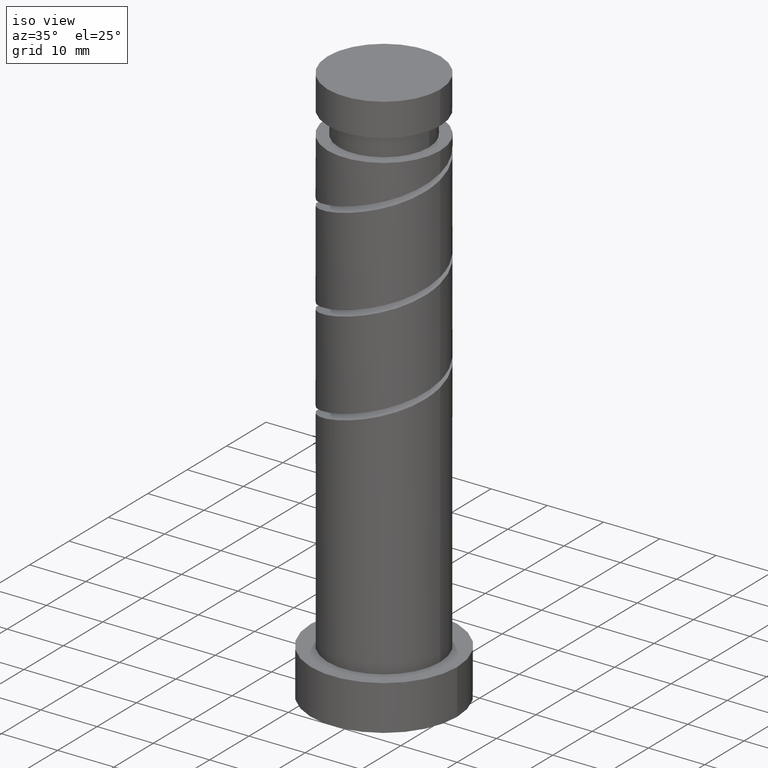
[diagram: clean part render]
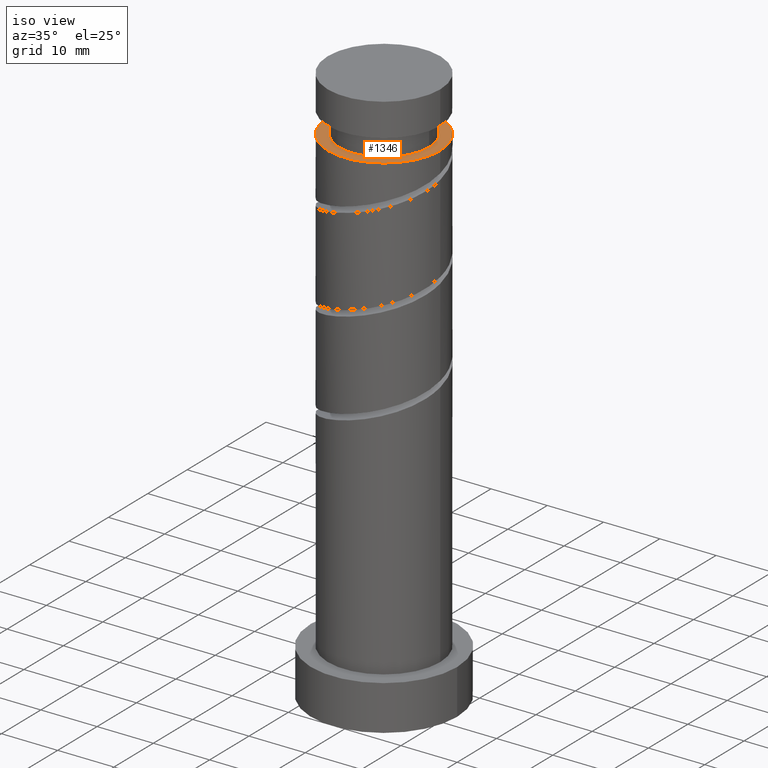
[diagram: same view with one face highlighted and labeled with its STEP entity id]
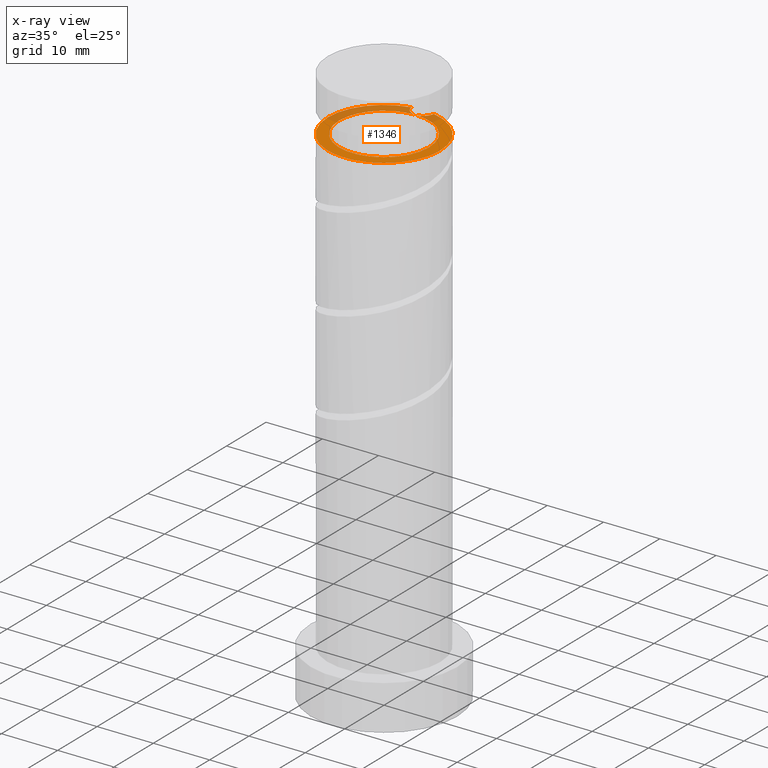
[diagram: x-ray of the same camera — body ghosted, the highlighted face saturated]
A machine part, iso view. The second image highlights one B-rep face of the part: STEP entity #1346.
The next image is the same camera in x-ray: the body ghosted, the highlighted face saturated — about 29% of this face is hidden behind the body in this view.
In plain terms, the highlighted planar face has unit normal (-0, 0, -1).
Its self-contained STEP definition (entity closure, byte-faithful):
#55 = CARTESIAN_POINT ( 'NONE',  ( -1.989974874213303657, 9.799999999999956302, 90.16289731215825043 ) ) ;
#64 = VERTEX_POINT ( 'NONE', #248 ) ;
#110 = EDGE_CURVE ( 'NONE', #180, #884, #361, .T. ) ;
#136 = EDGE_CURVE ( 'NONE', #1063, #407, #659, .T. ) ;
#145 = EDGE_CURVE ( 'NONE', #180, #763, #1305, .T. ) ;
#157 = DIRECTION ( 'NONE',  ( -1.000000000000000000, 0.000000000000000000, 0.000000000000000000 ) ) ;
#180 = VERTEX_POINT ( 'NONE', #1151 ) ;
#214 = AXIS2_PLACEMENT_3D ( 'NONE', #272, #1342, #157 ) ;
#228 = CARTESIAN_POINT ( 'NONE',  ( 8.000000000000003553, 9.797174393178831574E-16, 90.16289731215820780 ) ) ;
#248 = CARTESIAN_POINT ( 'NONE',  ( 10.00000000000000355, 1.224646799147353651E-15, 90.16289731215820780 ) ) ;
#272 = CARTESIAN_POINT ( 'NONE',  ( 0.000000000000000000, 0.000000000000000000, 90.16289731215820780 ) ) ;
#285 = ORIENTED_EDGE ( 'NONE', *, *, #625, .F. ) ;
#316 = DIRECTION ( 'NONE',  ( -1.000000000000000000, 0.000000000000000000, 0.000000000000000000 ) ) ;
#318 = AXIS2_PLACEMENT_3D ( 'NONE', #617, #848, #626 ) ;
#348 = CARTESIAN_POINT ( 'NONE',  ( 0.000000000000000000, 0.000000000000000000, 90.16289731215820780 ) ) ;
#361 = CIRCLE ( 'NONE', #607, 2.000000000000002665 ) ;
#395 = DIRECTION ( 'NONE',  ( -1.000000000000000000, -1.734723475976804728E-15, 0.000000000000000000 ) ) ;
#407 = VERTEX_POINT ( 'NONE', #55 ) ;
#432 = CARTESIAN_POINT ( 'NONE',  ( 0.000000000000000000, 0.000000000000000000, 90.16289731215820780 ) ) ;
#458 = AXIS2_PLACEMENT_3D ( 'NONE', #512, #1097, #395 ) ;
#512 = CARTESIAN_POINT ( 'NONE',  ( -1.821459649775647449E-14, 10.00000000000000888, 90.16289731215823622 ) ) ;
#518 = ORIENTED_EDGE ( 'NONE', *, *, #1318, .F. ) ;
#542 = EDGE_CURVE ( 'NONE', #884, #64, #714, .T. ) ;
#543 = ORIENTED_EDGE ( 'NONE', *, *, #136, .F. ) ;
#568 = DIRECTION ( 'NONE',  ( -1.000000000000000000, -1.734723475976804728E-15, 0.000000000000000000 ) ) ;
#607 = AXIS2_PLACEMENT_3D ( 'NONE', #1141, #1371, #568 ) ;
#617 = CARTESIAN_POINT ( 'NONE',  ( 0.000000000000000000, 0.000000000000000000, 90.16289731215820780 ) ) ;
#625 = EDGE_CURVE ( 'NONE', #64, #1063, #920, .T. ) ;
#626 = DIRECTION ( 'NONE',  ( -1.000000000000000000, 0.000000000000000000, 0.000000000000000000 ) ) ;
#659 = CIRCLE ( 'NONE', #1382, 10.00000000000000355 ) ;
#714 = CIRCLE ( 'NONE', #1277, 10.00000000000000355 ) ;
#723 = DIRECTION ( 'NONE',  ( -1.000000000000000000, 0.000000000000000000, 0.000000000000000000 ) ) ;
#724 = CARTESIAN_POINT ( 'NONE',  ( -10.00000000000000355, 0.000000000000000000, 90.16289731215820780 ) ) ;
#754 = DIRECTION ( 'NONE',  ( -0.000000000000000000, 0.000000000000000000, -1.000000000000000000 ) ) ;
#763 = VERTEX_POINT ( 'NONE', #228 ) ;
#791 = AXIS2_PLACEMENT_3D ( 'NONE', #348, #1184, #833 ) ;
#812 = CIRCLE ( 'NONE', #214, 8.000000000000003553 ) ;
#833 = DIRECTION ( 'NONE',  ( -1.000000000000000000, 0.000000000000000000, 0.000000000000000000 ) ) ;
#836 = DIRECTION ( 'NONE',  ( -0.000000000000000000, -0.000000000000000000, -1.000000000000000000 ) ) ;
#848 = DIRECTION ( 'NONE',  ( -0.000000000000000000, -0.000000000000000000, -1.000000000000000000 ) ) ;
#884 = VERTEX_POINT ( 'NONE', #1430 ) ;
#900 = CARTESIAN_POINT ( 'NONE',  ( 0.000000000000000000, 0.000000000000000000, 90.16289731215820780 ) ) ;
#920 = CIRCLE ( 'NONE', #1083, 10.00000000000000355 ) ;
#923 = AXIS2_PLACEMENT_3D ( 'NONE', #971, #754, #978 ) ;
#971 = CARTESIAN_POINT ( 'NONE',  ( 0.000000000000000000, 8.000000000000003553, 90.16289731215820780 ) ) ;
#978 = DIRECTION ( 'NONE',  ( -1.000000000000000000, 0.000000000000000000, 0.000000000000000000 ) ) ;
#997 = ORIENTED_EDGE ( 'NONE', *, *, #1241, .T. ) ;
#1009 = DIRECTION ( 'NONE',  ( -1.000000000000000000, 0.000000000000000000, 0.000000000000000000 ) ) ;
#1056 = CIRCLE ( 'NONE', #458, 2.000000000000002665 ) ;
#1063 = VERTEX_POINT ( 'NONE', #724 ) ;
#1083 = AXIS2_PLACEMENT_3D ( 'NONE', #432, #1355, #316 ) ;
#1086 = ORIENTED_EDGE ( 'NONE', *, *, #1369, .T. ) ;
#1097 = DIRECTION ( 'NONE',  ( 1.579864407505150767E-29, -1.040834085586082679E-14, 1.000000000000000000 ) ) ;
#1106 = PLANE ( 'NONE',  #923 ) ;
#1117 = FACE_OUTER_BOUND ( 'NONE', #1218, .T. ) ;
#1137 = ORIENTED_EDGE ( 'NONE', *, *, #145, .T. ) ;
#1141 = CARTESIAN_POINT ( 'NONE',  ( -1.821459649775647449E-14, 10.00000000000000888, 90.16289731215823622 ) ) ;
#1151 = CARTESIAN_POINT ( 'NONE',  ( -1.457167719820517328E-14, 8.000000000000003553, 90.16289731215823622 ) ) ;
#1161 = VERTEX_POINT ( 'NONE', #1210 ) ;
#1184 = DIRECTION ( 'NONE',  ( -0.000000000000000000, -0.000000000000000000, -1.000000000000000000 ) ) ;
#1210 = CARTESIAN_POINT ( 'NONE',  ( -8.000000000000003553, 0.000000000000000000, 90.16289731215820780 ) ) ;
#1218 = EDGE_LOOP ( 'NONE', ( #518, #543, #285, #1458, #1332, #1137, #997, #1086 ) ) ;
#1241 = EDGE_CURVE ( 'NONE', #763, #1161, #1418, .T. ) ;
#1253 = CARTESIAN_POINT ( 'NONE',  ( 0.000000000000000000, 0.000000000000000000, 90.16289731215820780 ) ) ;
#1277 = AXIS2_PLACEMENT_3D ( 'NONE', #1253, #1474, #1009 ) ;
#1305 = CIRCLE ( 'NONE', #318, 8.000000000000003553 ) ;
#1318 = EDGE_CURVE ( 'NONE', #407, #180, #1056, .T. ) ;
#1332 = ORIENTED_EDGE ( 'NONE', *, *, #110, .F. ) ;
#1342 = DIRECTION ( 'NONE',  ( -0.000000000000000000, -0.000000000000000000, -1.000000000000000000 ) ) ;
#1346 = ADVANCED_FACE ( 'NONE', ( #1117 ), #1106, .F. ) ;
#1355 = DIRECTION ( 'NONE',  ( -0.000000000000000000, -0.000000000000000000, -1.000000000000000000 ) ) ;
#1369 = EDGE_CURVE ( 'NONE', #1161, #180, #812, .T. ) ;
#1371 = DIRECTION ( 'NONE',  ( 1.579864407505150767E-29, -1.040834085586082679E-14, 1.000000000000000000 ) ) ;
#1382 = AXIS2_PLACEMENT_3D ( 'NONE', #900, #836, #723 ) ;
#1418 = CIRCLE ( 'NONE', #791, 8.000000000000003553 ) ;
#1430 = CARTESIAN_POINT ( 'NONE',  ( 1.989974874213243705, 9.800000000000000711, 90.16289731215817937 ) ) ;
#1458 = ORIENTED_EDGE ( 'NONE', *, *, #542, .F. ) ;
#1474 = DIRECTION ( 'NONE',  ( -0.000000000000000000, -0.000000000000000000, -1.000000000000000000 ) ) ;